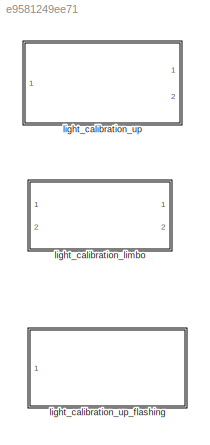
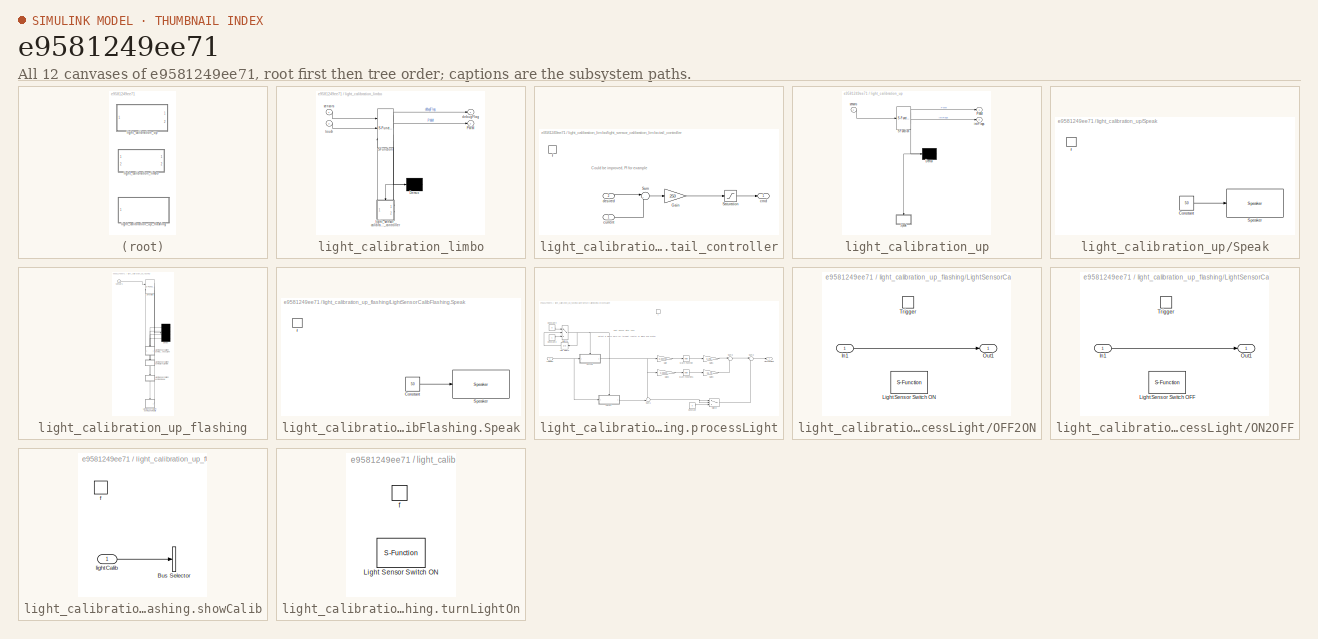
[diagram: thumbnail index - all 12 canvases of the model, root first then tree order]
MODEL slx_e9581249ee71
KIND library
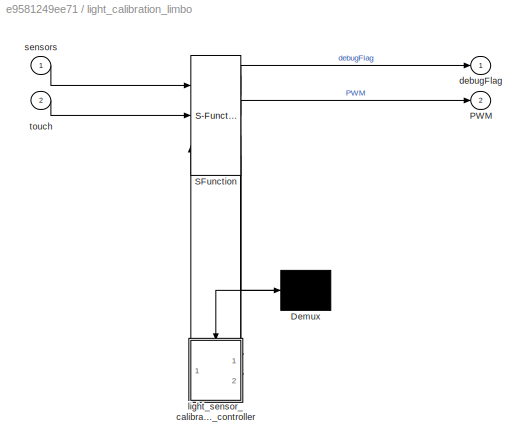
BLOCK [SubSystem] light_calibration_limbo
  ErrorFcn = Stateflow.Translate.translate
  PermitHierarchicalResolution = ExplicitOnly
  Ports = [2, 2]
  RequestExecContextInheritance = off
  SFBlockType = Chart
  TreatAsAtomicUnit = on
BLOCK [Demux] light_calibration_limbo/ Demux 
  Outputs = 1
  Ports = [1, 1]
BLOCK [S-Function] light_calibration_limbo/ SFunction 
  EnableBusSupport = off
  FunctionName = sf_sfun
  PortCounts = [3 5]
  Ports = [3, 5]
  Tag = Stateflow S-Function light_sensor_calibration_algorithm_atomic_sub_chart_library 2
BLOCK [Outport] light_calibration_limbo/PWM
  IconDisplay = Port number
  Port = 2
BLOCK [Outport] light_calibration_limbo/debugFlag
  IconDisplay = Port number
BLOCK [SubSystem] light_calibration_limbo/light_sensor_calibration_limbo.tail_controller
  Ports = [2, 1, 0, 1]
  PreDeleteFcn = Stateflow.SLINSF.SimulinkMan.removePreDeleteFcn
  RequestExecContextInheritance = off
  UndoDeleteFcn = Stateflow.SLINSF.SimulinkMan.restorePreDeleteFcn
BLOCK [Gain] light_calibration_limbo/light_sensor_calibration_limbo.tail_controller/Gain
  Gain = 250
  OutDataTypeStr = Inherit: Inherit via internal rule
  ParamDataTypeStr = Inherit: Inherit via internal rule
  SaturateOnIntegerOverflow = off
BLOCK [Saturate] light_calibration_limbo/light_sensor_calibration_limbo.tail_controller/Saturation
  InputPortMap = u0
  LowerLimit = -100
  OutDataTypeStr = single
  Ports = [1, 1]
  UpperLimit = 100
BLOCK [Sum] light_calibration_limbo/light_sensor_calibration_limbo.tail_controller/Sum
  IconShape = round
  InputSameDT = off
  Inputs = |+-
  OutDataTypeStr = Inherit: Inherit via internal rule
  Ports = [2, 1]
  SaturateOnIntegerOverflow = off
BLOCK [Outport] light_calibration_limbo/light_sensor_calibration_limbo.tail_controller/cmd
  IconDisplay = Port number
  InitialOutput = 0
  OutDataTypeStr = single
  PortDimensions = 1
  SamplingMode = Sample based
  SignalType = real
  VarSizeSig = No
BLOCK [Inport] light_calibration_limbo/light_sensor_calibration_limbo.tail_controller/current
  IconDisplay = Port number
  OutDataTypeStr = single
  PortDimensions = 1
  SamplingMode = Sample based
  SignalType = real
  VarSizeSig = No
BLOCK [Inport] light_calibration_limbo/light_sensor_calibration_limbo.tail_controller/desired
  IconDisplay = Port number
  OutDataTypeStr = single
  Port = 2
  PortDimensions = 1
  SamplingMode = Sample based
  SignalType = real
  VarSizeSig = No
BLOCK [TriggerPort] light_calibration_limbo/light_sensor_calibration_limbo.tail_controller/f
  CopyFcn = Stateflow.SLINSF.SimulinkMan.removeBlockPreDeleteFcn
  Ports = []
  PreDeleteFcn = Stateflow.SLINSF.SimulinkMan.unsafePredeleteFcn
  StatesWhenEnabling = held
  TriggerType = function-call
BLOCK [Inport] light_calibration_limbo/sensors
  IconDisplay = Port number
BLOCK [Inport] light_calibration_limbo/touch
  IconDisplay = Port number
  Port = 2
BLOCK [SubSystem] light_calibration_up
  DSMNames = current_task_operation_status,lightCalib
  DSMValues = current_mode_status,lightCalib
  ErrorFcn = Stateflow.Translate.translate
  PermitHierarchicalResolution = ExplicitOnly
  Ports = [1, 2]
  RequestExecContextInheritance = off
  SFBlockType = Chart
  TreatAsAtomicUnit = on
BLOCK [Demux] light_calibration_up/ Demux 
  Outputs = 1
  Ports = [1, 1]
BLOCK [S-Function] light_calibration_up/ SFunction 
  EnableBusSupport = off
  FunctionName = sf_sfun
  PortCounts = [1 3]
  Ports = [1, 3]
  Tag = Stateflow S-Function light_sensor_calibration_algorithm_atomic_sub_chart_library 4
BLOCK [Outport] light_calibration_up/PWM
  IconDisplay = Port number
BLOCK [SubSystem] light_calibration_up/Speak
  Commented = on
  Ports = [0, 0, 0, 1]
  PreDeleteFcn = Stateflow.SLINSF.SimulinkMan.removePreDeleteFcn
  RequestExecContextInheritance = off
  UndoDeleteFcn = Stateflow.SLINSF.SimulinkMan.restorePreDeleteFcn
BLOCK [Constant] light_calibration_up/Speak/Constant
  Value = 50
BLOCK [Reference] light_calibration_up/Speak/Speaker  REF=legonxtlib/Speaker
  Ports = [1]
  SourceBlock = legonxtlib/Speaker
  SourceType = LEGO MINDSTORMS NXT Speaker
  blockPlatform = LegoMindstormsNXT
  sinputMode = Volume only
  sspeakerDuration = 100
  sspeakerFreq = 800
  sspeakerVolume = 50
BLOCK [TriggerPort] light_calibration_up/Speak/f
  CopyFcn = Stateflow.SLINSF.SimulinkMan.removeBlockPreDeleteFcn
  Ports = []
  PreDeleteFcn = Stateflow.SLINSF.SimulinkMan.unsafePredeleteFcn
  StatesWhenEnabling = held
  TriggerType = function-call
BLOCK [Outport] light_calibration_up/initFlags
  IconDisplay = Port number
  Port = 2
BLOCK [Inport] light_calibration_up/sensors
  IconDisplay = Port number
BLOCK [SubSystem] light_calibration_up_flashing
  ErrorFcn = Stateflow.Translate.translate
  PermitHierarchicalResolution = ExplicitOnly
  Ports = [1]
  RequestExecContextInheritance = off
  SFBlockType = Chart
  TreatAsAtomicUnit = on
BLOCK [Demux] light_calibration_up_flashing/ Demux 
  Ports = [1, 4]
BLOCK [S-Function] light_calibration_up_flashing/ SFunction 
  EnableBusSupport = off
  FunctionName = sf_sfun
  PortCounts = [2 3]
  Ports = [2, 3]
  Tag = Stateflow S-Function light_sensor_calibration_algorithm_atomic_sub_chart_library 3
BLOCK [SubSystem] light_calibration_up_flashing/LightSensorCalibFlashing.Speak
  Commented = on
  Ports = [0, 0, 0, 1]
  PreDeleteFcn = Stateflow.SLINSF.SimulinkMan.removePreDeleteFcn
  RequestExecContextInheritance = off
  UndoDeleteFcn = Stateflow.SLINSF.SimulinkMan.restorePreDeleteFcn
BLOCK [Constant] light_calibration_up_flashing/LightSensorCalibFlashing.Speak/Constant
  Value = 50
BLOCK [Reference] light_calibration_up_flashing/LightSensorCalibFlashing.Speak/Speaker  REF=legonxtlib/Speaker
  Ports = [1]
  SourceBlock = legonxtlib/Speaker
  SourceType = LEGO MINDSTORMS NXT Speaker
  blockPlatform = LegoMindstormsNXT
  sinputMode = Volume only
  sspeakerDuration = 100
  sspeakerFreq = 800
  sspeakerVolume = 50
BLOCK [TriggerPort] light_calibration_up_flashing/LightSensorCalibFlashing.Speak/f
  CopyFcn = Stateflow.SLINSF.SimulinkMan.removeBlockPreDeleteFcn
  Ports = []
  PreDeleteFcn = Stateflow.SLINSF.SimulinkMan.unsafePredeleteFcn
  StatesWhenEnabling = held
  TriggerType = function-call
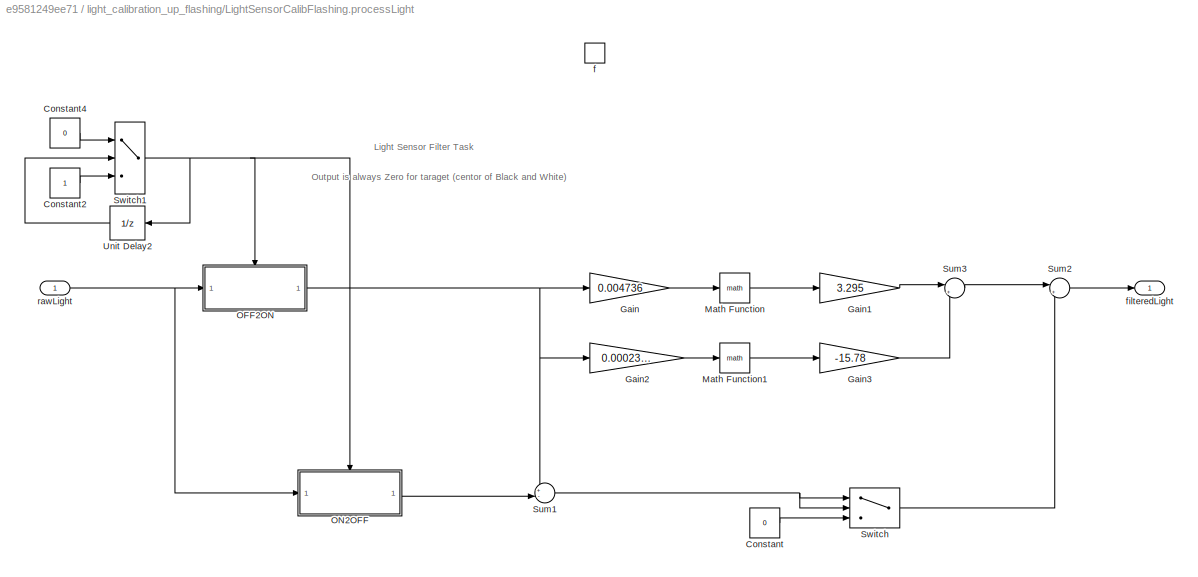
BLOCK [SubSystem] light_calibration_up_flashing/LightSensorCalibFlashing.processLight
  Ports = [1, 1, 0, 1]
  PreDeleteFcn = Stateflow.SLINSF.SimulinkMan.removePreDeleteFcn
  RequestExecContextInheritance = off
  UndoDeleteFcn = Stateflow.SLINSF.SimulinkMan.restorePreDeleteFcn
BLOCK [Constant] light_calibration_up_flashing/LightSensorCalibFlashing.processLight/Constant
  OutDataTypeStr = single
  SampleTime = -1
  Value = 0
BLOCK [Constant] light_calibration_up_flashing/LightSensorCalibFlashing.processLight/Constant2
  OutDataTypeStr = uint8
BLOCK [Constant] light_calibration_up_flashing/LightSensorCalibFlashing.processLight/Constant4
  OutDataTypeStr = uint8
  Value = 0
BLOCK [Gain] light_calibration_up_flashing/LightSensorCalibFlashing.processLight/Gain
  Gain = 0.004736
  OutDataTypeStr = Inherit: Inherit via internal rule
  ParamDataTypeStr = Inherit: Inherit via internal rule
  SaturateOnIntegerOverflow = off
BLOCK [Gain] light_calibration_up_flashing/LightSensorCalibFlashing.processLight/Gain1
  Gain = 3.295
  OutDataTypeStr = Inherit: Inherit via internal rule
  ParamDataTypeStr = Inherit: Inherit via internal rule
  SaturateOnIntegerOverflow = off
BLOCK [Gain] light_calibration_up_flashing/LightSensorCalibFlashing.processLight/Gain2
  Gain = 0.0002337
  OutDataTypeStr = Inherit: Inherit via internal rule
  ParamDataTypeStr = Inherit: Inherit via internal rule
  SaturateOnIntegerOverflow = off
BLOCK [Gain] light_calibration_up_flashing/LightSensorCalibFlashing.processLight/Gain3
  Gain = -15.78
  OutDataTypeStr = Inherit: Inherit via internal rule
  ParamDataTypeStr = Inherit: Inherit via internal rule
  SaturateOnIntegerOverflow = off
BLOCK [Math] light_calibration_up_flashing/LightSensorCalibFlashing.processLight/Math Function
  Ports = [1, 1]
BLOCK [Math] light_calibration_up_flashing/LightSensorCalibFlashing.processLight/Math Function1
  Ports = [1, 1]
BLOCK [SubSystem] light_calibration_up_flashing/LightSensorCalibFlashing.processLight/OFF2ON
  Ports = [1, 1, 0, 1]
  RequestExecContextInheritance = off
  TreatAsAtomicUnit = on
BLOCK [Inport] light_calibration_up_flashing/LightSensorCalibFlashing.processLight/OFF2ON/In1
  IconDisplay = Port number
BLOCK [S-Function] light_calibration_up_flashing/LightSensorCalibFlashing.processLight/OFF2ON/Light Sensor Switch ON
  EnableBusSupport = off
  FunctionName = sfun_light_sw
  Parameters = -1,ip,sw
  Ports = []
BLOCK [Outport] light_calibration_up_flashing/LightSensorCalibFlashing.processLight/OFF2ON/Out1
  IconDisplay = Port number
BLOCK [TriggerPort] light_calibration_up_flashing/LightSensorCalibFlashing.processLight/OFF2ON/Trigger
  Ports = []
  StatesWhenEnabling = held
BLOCK [SubSystem] light_calibration_up_flashing/LightSensorCalibFlashing.processLight/ON2OFF
  Ports = [1, 1, 0, 1]
  RequestExecContextInheritance = off
  TreatAsAtomicUnit = on
BLOCK [Inport] light_calibration_up_flashing/LightSensorCalibFlashing.processLight/ON2OFF/In1
  IconDisplay = Port number
BLOCK [S-Function] light_calibration_up_flashing/LightSensorCalibFlashing.processLight/ON2OFF/Light Sensor Switch OFF
  EnableBusSupport = off
  FunctionName = sfun_light_sw
  Parameters = -1,ip,sw
  Ports = []
BLOCK [Outport] light_calibration_up_flashing/LightSensorCalibFlashing.processLight/ON2OFF/Out1
  IconDisplay = Port number
BLOCK [TriggerPort] light_calibration_up_flashing/LightSensorCalibFlashing.processLight/ON2OFF/Trigger
  Ports = []
  StatesWhenEnabling = held
  TriggerType = falling
BLOCK [Sum] light_calibration_up_flashing/LightSensorCalibFlashing.processLight/Sum1
  IconShape = round
  InputSameDT = off
  Inputs = +-|
  OutDataTypeStr = Inherit: Inherit via internal rule
  Ports = [2, 1]
  SaturateOnIntegerOverflow = off
BLOCK [Sum] light_calibration_up_flashing/LightSensorCalibFlashing.processLight/Sum2
  IconShape = round
  InputSameDT = off
  Inputs = |+-
  OutDataTypeStr = Inherit: Inherit via internal rule
  Ports = [2, 1]
  SaturateOnIntegerOverflow = off
BLOCK [Sum] light_calibration_up_flashing/LightSensorCalibFlashing.processLight/Sum3
  IconShape = round
  InputSameDT = off
  Inputs = |++
  OutDataTypeStr = Inherit: Inherit via internal rule
  Ports = [2, 1]
  SaturateOnIntegerOverflow = off
BLOCK [Switch] light_calibration_up_flashing/LightSensorCalibFlashing.processLight/Switch
  Criteria = u2 > Threshold
  InputSameDT = off
  RndMeth = Simplest
  SaturateOnIntegerOverflow = off
BLOCK [Switch] light_calibration_up_flashing/LightSensorCalibFlashing.processLight/Switch1
  InputSameDT = off
  SaturateOnIntegerOverflow = off
  Threshold = 0.5
BLOCK [UnitDelay] light_calibration_up_flashing/LightSensorCalibFlashing.processLight/Unit Delay2
  SampleTime = -1
BLOCK [TriggerPort] light_calibration_up_flashing/LightSensorCalibFlashing.processLight/f
  CopyFcn = Stateflow.SLINSF.SimulinkMan.removeBlockPreDeleteFcn
  Ports = []
  PreDeleteFcn = Stateflow.SLINSF.SimulinkMan.unsafePredeleteFcn
  StatesWhenEnabling = held
  TriggerType = function-call
BLOCK [Outport] light_calibration_up_flashing/LightSensorCalibFlashing.processLight/filteredLight
  IconDisplay = Port number
  InitialOutput = 0
  OutDataTypeStr = single
  PortDimensions = 1
  SamplingMode = Sample based
  SignalType = real
  VarSizeSig = No
BLOCK [Inport] light_calibration_up_flashing/LightSensorCalibFlashing.processLight/rawLight
  IconDisplay = Port number
  OutDataTypeStr = single
  PortDimensions = 1
  SamplingMode = Sample based
  SignalType = real
  VarSizeSig = No
BLOCK [SubSystem] light_calibration_up_flashing/LightSensorCalibFlashing.showCalib
  Commented = on
  Ports = [1, 0, 0, 1]
  PreDeleteFcn = Stateflow.SLINSF.SimulinkMan.removePreDeleteFcn
  RequestExecContextInheritance = off
  UndoDeleteFcn = Stateflow.SLINSF.SimulinkMan.restorePreDeleteFcn
BLOCK [BusSelector] light_calibration_up_flashing/LightSensorCalibFlashing.showCalib/Bus Selector
  OutputSignals = flashingWhite,flashingBlack
  Ports = [1, 2]
BLOCK [TriggerPort] light_calibration_up_flashing/LightSensorCalibFlashing.showCalib/f
  CopyFcn = Stateflow.SLINSF.SimulinkMan.removeBlockPreDeleteFcn
  Ports = []
  PreDeleteFcn = Stateflow.SLINSF.SimulinkMan.unsafePredeleteFcn
  StatesWhenEnabling = held
  TriggerType = function-call
BLOCK [Inport] light_calibration_up_flashing/LightSensorCalibFlashing.showCalib/lightCalib
  IconDisplay = Port number
  OutDataTypeStr = Bus: Light_Bus
  PortDimensions = 1
  SignalType = real
  VarSizeSig = No
BLOCK [SubSystem] light_calibration_up_flashing/LightSensorCalibFlashing.turnLightOn
  Ports = [0, 0, 0, 1]
  PreDeleteFcn = Stateflow.SLINSF.SimulinkMan.removePreDeleteFcn
  RequestExecContextInheritance = off
  UndoDeleteFcn = Stateflow.SLINSF.SimulinkMan.restorePreDeleteFcn
BLOCK [S-Function] light_calibration_up_flashing/LightSensorCalibFlashing.turnLightOn/Light Sensor Switch ON
  EnableBusSupport = off
  FunctionName = sfun_light_sw
  Parameters = -1,ip,sw
  Ports = []
BLOCK [TriggerPort] light_calibration_up_flashing/LightSensorCalibFlashing.turnLightOn/f
  CopyFcn = Stateflow.SLINSF.SimulinkMan.removeBlockPreDeleteFcn
  Ports = []
  PreDeleteFcn = Stateflow.SLINSF.SimulinkMan.unsafePredeleteFcn
  StatesWhenEnabling = held
  TriggerType = function-call
BLOCK [Inport] light_calibration_up_flashing/sensors
  IconDisplay = Port number
ANNOTATION light_calibration_limbo/light_sensor_calibration_limbo.tail_controller: Could be improved, PI for example
ANNOTATION light_calibration_up_flashing/LightSensorCalibFlashing.processLight: Light Sensor Filter Task
ANNOTATION light_calibration_up_flashing/LightSensorCalibFlashing.processLight: Output is always Zero for taraget (centor of Black and White)
CHART light_calibration_limbo states=8 transitions=6
  STATE_LABEL 'light_sensor_calibration_limbo\nentry:\ndesired_tail = single(1.6);\nentry, during,exit:\nPWM.tail = tail_controller(sensors.theta_T,desired_tail);'
  STATE_LABEL 'TiltDown\nentry: debugFlag = uint16(409);\nduring:\ndesired_tail = desired_tail - single(0.3/(1/0.004));\n'
  STATE_LABEL 'WaitForBlack\nentry: debugFlag = uint16(410);\n'
  STATE_LABEL 'StoreBlackonTail\nentry: lightCalib.blackOnLimbo = sensors.light;\n debugFlag = uint16(sensors.light);\n'
  STATE_LABEL 'WaitForWhiteOnTail\n%entry: debugFlag = uint16(416)'
  STATE_LABEL 'StoreWhiteOnTail\nentry: lightCalib.whiteOnLimbo = sensors.light;\n debugFlag = uint16(sensors.light);\n'
  STATE_LABEL 'CalibComplete\nentry:\n%debugFlag = uint16(318);\ncurrent_task_operation_status = OperationModeStatusEnum.SUCCESSFULLY_COMPLETED;'
  STATE_LABEL 'cmd = tail_controller(current,desired)'
  STATE_LABEL '[desired_tail <= 1.1]'
  STATE_LABEL '[hasChangedFrom(touch,single(0))]'
  STATE_LABEL 'after(1,sec)'
  STATE_LABEL '[hasChangedFrom(touch,single(0))]'
  STATE_LABEL 'after(1,sec)'
  STATE_LABEL 'TiltDown\nentry: debugFlag = uint16(409);\nduring:\ndesired_tail = desired_tail - single(0.3/(1/0.004));\n'
  STATE_LABEL 'WaitForBlack\nentry: debugFlag = uint16(410);\n'
  STATE_LABEL 'StoreBlackonTail\nentry: lightCalib.blackOnLimbo = sensors.light;\n debugFlag = uint16(sensors.light);\n'
  STATE_LABEL 'WaitForWhiteOnTail\n%entry: debugFlag = uint16(416)'
  STATE_LABEL 'StoreWhiteOnTail\nentry: lightCalib.whiteOnLimbo = sensors.light;\n debugFlag = uint16(sensors.light);\n'
  STATE_LABEL 'CalibComplete\nentry:\n%debugFlag = uint16(318);\ncurrent_task_operation_status = OperationModeStatusEnum.SUCCESSFULLY_COMPLETED;'
  STATE_LABEL 'cmd = tail_controller(current,desired)'
CHART light_calibration_up_flashing states=10 transitions=5
  STATE_LABEL 'LightSensorCalibFlashing\nduring:\non every(3, tick): filteredLight = processLight(sensors.light);\n % showCalib(lightCalib);'
  STATE_LABEL 'WaitForBlack\nentry: StatusLCD( uint16(310));\n'
  STATE_LABEL 'StoreBlack\nentry: lightCalib.flashingBlack = filteredLight;\n StatusLCD(uint16(311));\n Speak;\n'
  STATE_LABEL 'WaitForWhite\nentry:StatusLCD(uint16(312));\nSpeak;'
  STATE_LABEL 'showCalib(lightCalib)'
  STATE_LABEL 'StoreWhite\nentry: lightCalib.flashingWhite = filteredLight;\n StatusLCD(uint16(313));\n Speak;\nexit:\nturnLightOn;\nSpeak;\n'
  STATE_LABEL 'CalibComplete\nentry:\n StatusLCD(uint16(318));\n current_task_operation_status = OperationModeStatusEnum.SUCCESSFULLY_COMPLETED;'
  STATE_LABEL 'Speak'
  STATE_LABEL 'turnLightOn'
  STATE_LABEL 'filteredLight  = processLight(rawLight)'
  STATE_LABEL '[sensors.touch]{Speak;}'
  STATE_LABEL 'after(1,sec)'
  STATE_LABEL '[sensors.touch]{Speak;}'
  STATE_LABEL 'after(1,sec)'
  STATE_LABEL 'WaitForBlack\nentry: StatusLCD( uint16(310));\n'
  STATE_LABEL 'StoreBlack\nentry: lightCalib.flashingBlack = filteredLight;\n StatusLCD(uint16(311));\n Speak;\n'
  STATE_LABEL 'WaitForWhite\nentry:StatusLCD(uint16(312));\nSpeak;'
  STATE_LABEL 'showCalib(lightCalib)'
  STATE_LABEL 'StoreWhite\nentry: lightCalib.flashingWhite = filteredLight;\n StatusLCD(uint16(313));\n Speak;\nexit:\nturnLightOn;\nSpeak;\n'
  STATE_LABEL 'CalibComplete\nentry:\n StatusLCD(uint16(318));\n current_task_operation_status = OperationModeStatusEnum.SUCCESSFULLY_COMPLETED;'
  STATE_LABEL 'Speak'
  STATE_LABEL 'turnLightOn'
  STATE_LABEL 'filteredLight  = processLight(rawLight)'
CHART light_calibration_up states=10 transitions=9
  STATE_LABEL 'wait\nentry: StatusLCD(uint16(200));'
  STATE_LABEL 'MoveUp\nentry: StatusLCD(uint16(201));\n PWM.tail = single(-50);'
  STATE_LABEL 'Reset\nentry:StatusLCD(uint16(202));\nPWM.tail = single(0);\ninitFlags.tail = single(1);\nexit:\ninitFlags.tail = single(0);\ndesired_tail = single(0);\n'
  STATE_LABEL 'light_sensor_calibration_up\n%during, exit: PWM.tail = tail_controller(sensors.theta_T,single(1.6))'
  STATE_LABEL 'WaitForBlack\nentry: StatusLCD(uint16(203));\n'
  STATE_LABEL 'StoreBlack\nentry: lightCalib.black = sensors.light;\n StatusLCD(uint16(204));\n'
  STATE_LABEL 'WaitForWhite\nentry: StatusLCD(uint16(205));'
  STATE_LABEL 'StoreWhite\nentry: lightCalib.white = sensors.light;\n StatusLCD(uint16(206));\n'
  STATE_LABEL 'CalibComplete\nentry:\n StatusLCD(uint16(207));\n current_task_operation_status = OperationModeStatusEnum.SUCCESSFULLY_COMPLETED;'
  STATE_LABEL '[sensors.touch]{Speak;}'
  STATE_LABEL 'after(0.2,sec){Speak;}'
  STATE_LABEL '[sensors.touch]{Speak;}'
  STATE_LABEL 'after(0.2,sec){Speak;}'
  STATE_LABEL 'WaitForBlack\nentry: StatusLCD(uint16(203));\n'
  STATE_LABEL 'StoreBlack\nentry: lightCalib.black = sensors.light;\n StatusLCD(uint16(204));\n'
  STATE_LABEL 'WaitForWhite\nentry: StatusLCD(uint16(205));'
  STATE_LABEL 'StoreWhite\nentry: lightCalib.white = sensors.light;\n StatusLCD(uint16(206));\n'
  STATE_LABEL 'CalibComplete\nentry:\n StatusLCD(uint16(207));\n current_task_operation_status = OperationModeStatusEnum.SUCCESSFULLY_COMPLETED;'
  STATE_LABEL 'Speak'
